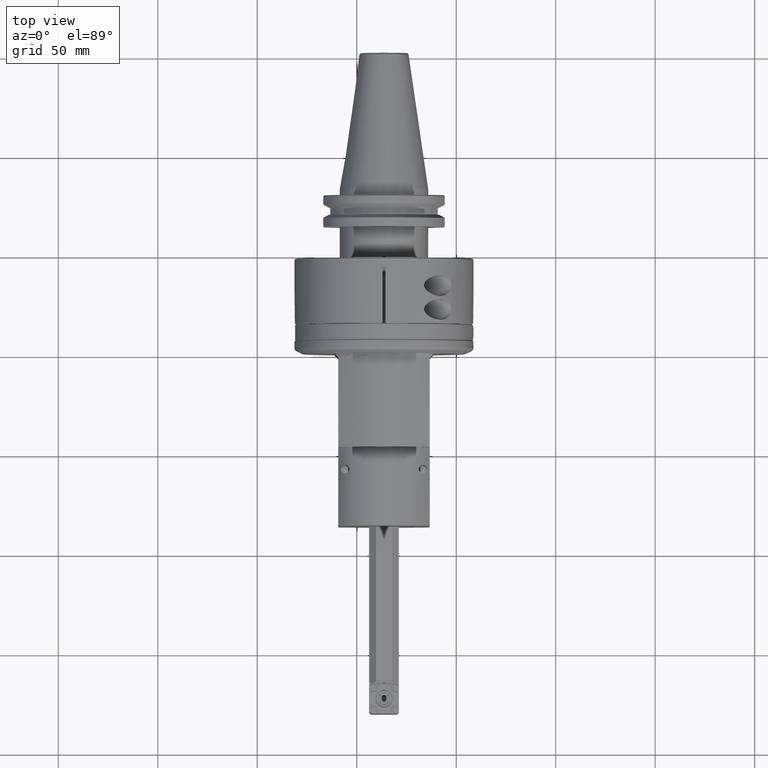
[diagram: clean part render]
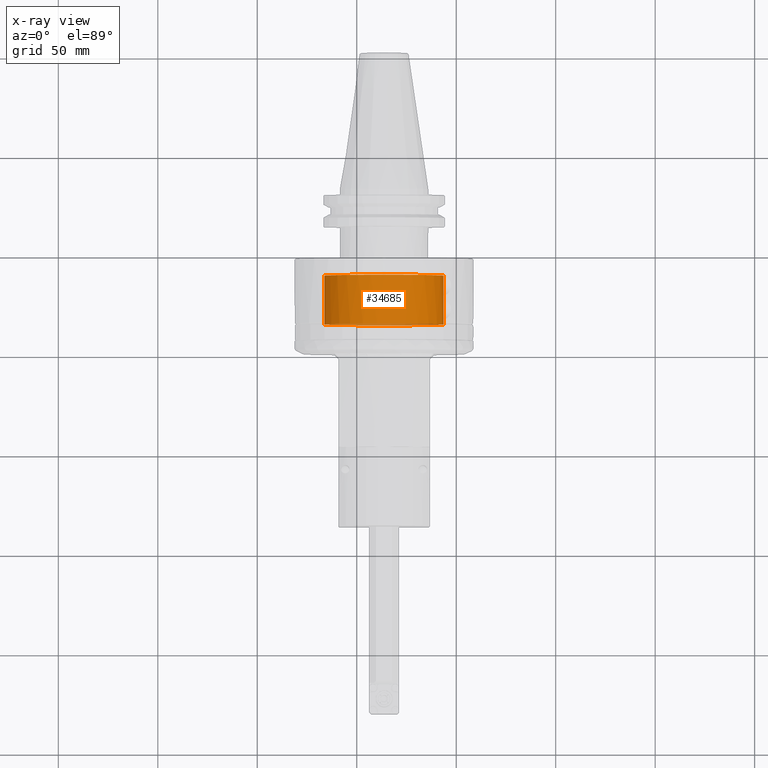
[diagram: x-ray — body ghosted, one internal face saturated and labeled with its STEP entity id]
A machine part, top view, then the same camera in x-ray: the body is ghosted and one INTERNAL B-rep face — a face not visible from any outside direction — is saturated and labeled: STEP entity #34685.
In plain terms, the highlighted cylindrical surface (bore or boss wall) has radius 30 mm, axis along (-0, 1, 0).
Its self-contained STEP definition (entity closure, byte-faithful):
#2185=LINE('',#58417,#4884);
#4884=VECTOR('',#42283,30.);
#7265=CYLINDRICAL_SURFACE('',#37294,30.);
#8171=FACE_OUTER_BOUND('',#10318,.T.);
#10318=EDGE_LOOP('',(#24488,#24489,#24490,#24491,#24492));
#12602=CIRCLE('',#37292,30.);
#12603=CIRCLE('',#37293,30.);
#12604=CIRCLE('',#37295,30.);
#14575=VERTEX_POINT('',#58410);
#14576=VERTEX_POINT('',#58411);
#14577=VERTEX_POINT('',#58416);
#18358=EDGE_CURVE('',#14575,#14576,#12602,.T.);
#18360=EDGE_CURVE('',#14576,#14575,#12603,.T.);
#18361=EDGE_CURVE('',#14575,#14577,#2185,.T.);
#18362=EDGE_CURVE('',#14577,#14577,#12604,.T.);
#24488=ORIENTED_EDGE('',*,*,#18358,.F.);
#24489=ORIENTED_EDGE('',*,*,#18361,.T.);
#24490=ORIENTED_EDGE('',*,*,#18362,.F.);
#24491=ORIENTED_EDGE('',*,*,#18361,.F.);
#24492=ORIENTED_EDGE('',*,*,#18360,.F.);
#34685=ADVANCED_FACE('',(#8171),#7265,.T.);
#37292=AXIS2_PLACEMENT_3D('',#58412,#42276,#42277);
#37293=AXIS2_PLACEMENT_3D('',#58414,#42279,#42280);
#37294=AXIS2_PLACEMENT_3D('',#58415,#42281,#42282);
#37295=AXIS2_PLACEMENT_3D('',#58418,#42284,#42285);
#42276=DIRECTION('center_axis',(0.,-1.,0.));
#42277=DIRECTION('ref_axis',(-1.,0.,0.));
#42279=DIRECTION('center_axis',(0.,-1.,0.));
#42280=DIRECTION('ref_axis',(-1.,0.,0.));
#42281=DIRECTION('center_axis',(0.,-1.,0.));
#42282=DIRECTION('ref_axis',(-1.,0.,0.));
#42283=DIRECTION('',(0.,1.,0.));
#42284=DIRECTION('center_axis',(0.,1.,0.));
#42285=DIRECTION('ref_axis',(-1.,0.,0.));
#58410=CARTESIAN_POINT('',(30.,0.4999999999998,0.));
#58411=CARTESIAN_POINT('',(3.20001373633642E-13,0.499999999999912,30.0000000000001));
#58412=CARTESIAN_POINT('Origin',(-1.405282202022E-14,0.4999999999998,0.));
#58414=CARTESIAN_POINT('Origin',(-1.405282202022E-14,0.4999999999998,0.));
#58415=CARTESIAN_POINT('Origin',(0.,80.85,0.));
#58416=CARTESIAN_POINT('',(30.,25.,3.67394039744206E-15));
#58417=CARTESIAN_POINT('',(30.,80.85,3.67394039744206E-15));
#58418=CARTESIAN_POINT('Origin',(0.,25.,0.));